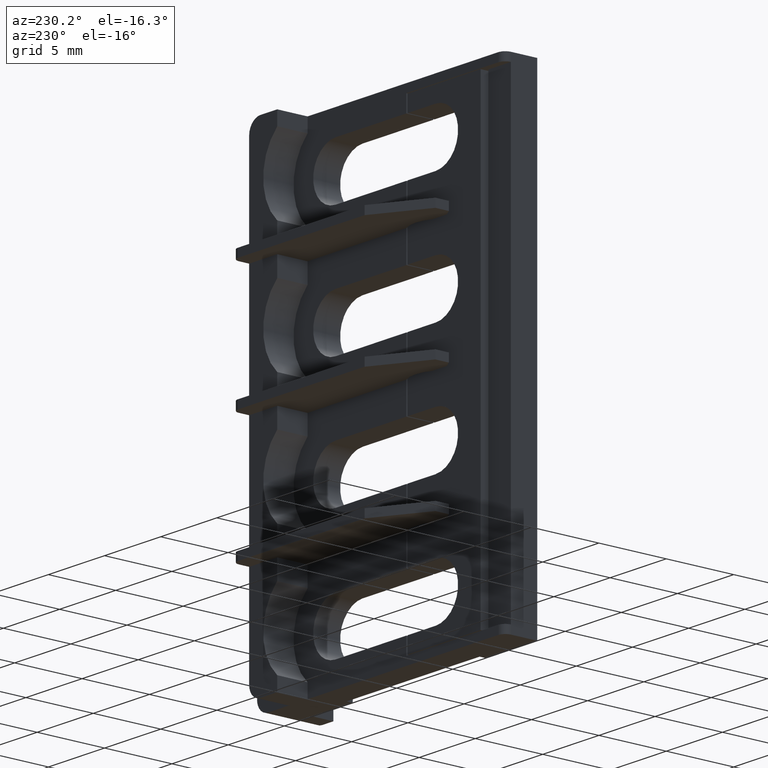
[diagram: clean part render]
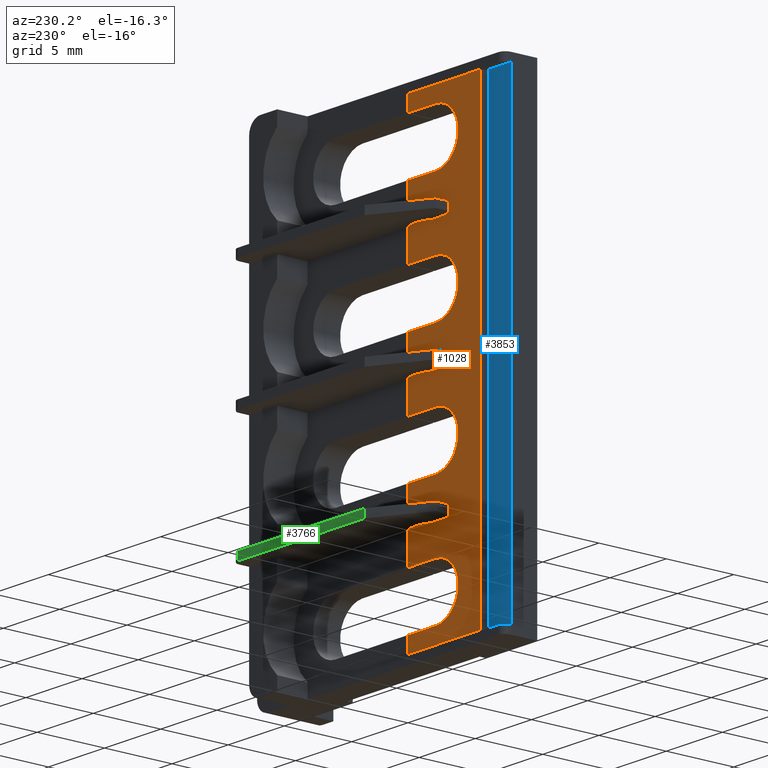
[diagram: same view with three faces highlighted in distinct colors, each labeled with its STEP entity id]
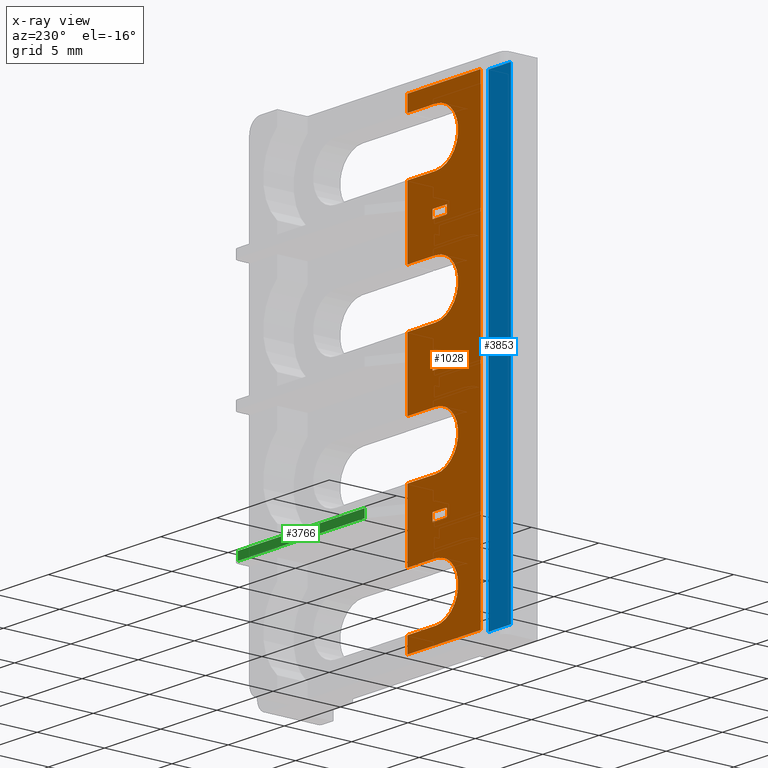
[diagram: x-ray of the same camera — body ghosted, the three highlighted faces saturated]
A machine part, auxiliary view with three faces highlighted in distinct colors.
The next image is the same camera in x-ray (body ghosted, the three faces saturated) — at least one of them is partly hidden behind the body in this view.
Their STEP definitions:

[orange] entity #1028 — the highlighted planar face has unit normal (-0, 1, -0).
#810 = LINE ( 'NONE', #827, #3349 ) ;
#819 = DIRECTION ( 'NONE',  ( -3.492165866658365900E-015, 2.733577826868160200E-020, 1.000000000000000000 ) ) ;
#827 = CARTESIAN_POINT ( 'NONE',  ( 449.2314272154431500, 146.0878730676890000, 17.50000000000000400 ) ) ;
#947 = EDGE_CURVE ( 'NONE', #2360, #2367, #2850, .T. ) ;
#963 = EDGE_CURVE ( 'NONE', #2370, #2407, #4908, .T. ) ;
#970 = EDGE_CURVE ( 'NONE', #2411, #2392, #4975, .T. ) ;
#973 = EDGE_CURVE ( 'NONE', #2367, #2394, #4994, .T. ) ;
#993 = EDGE_CURVE ( 'NONE', #2352, #2403, #5029, .T. ) ;
#998 = EDGE_CURVE ( 'NONE', #2358, #2408, #5078, .T. ) ;
#999 = EDGE_CURVE ( 'NONE', #2409, #2366, #5064, .T. ) ;
#1004 = EDGE_CURVE ( 'NONE', #2408, #2377, #2873, .T. ) ;
#1011 = EDGE_CURVE ( 'NONE', #2403, #2389, #5059, .T. ) ;
#1012 = EDGE_CURVE ( 'NONE', #2366, #2360, #5048, .T. ) ;
#1014 = EDGE_CURVE ( 'NONE', #2372, #2370, #5105, .T. ) ;
#1015 = EDGE_CURVE ( 'NONE', #2389, #2372, #2907, .T. ) ;
#1017 = EDGE_CURVE ( 'NONE', #2401, #2411, #5103, .T. ) ;
#1020 = EDGE_CURVE ( 'NONE', #2404, #2361, #5100, .T. ) ;
#1021 = EDGE_CURVE ( 'NONE', #2377, #2352, #5102, .T. ) ;
#1022 = EDGE_CURVE ( 'NONE', #2414, #2401, #2917, .T. ) ;
#1023 = EDGE_CURVE ( 'NONE', #2361, #2409, #5093, .T. ) ;
#1026 = EDGE_CURVE ( 'NONE', #2392, #2404, #5120, .T. ) ;
#1028 = ADVANCED_FACE ( 'NONE', ( #5129, #5109, #1952, #1979 ), #1951, .T. ) ;
#1037 = EDGE_CURVE ( 'NONE', #2394, #2358, #1964, .T. ) ;
#1042 = EDGE_CURVE ( 'NONE', #2407, #2414, #2030, .T. ) ;
#1094 = CARTESIAN_POINT ( 'NONE',  ( 446.2252094327939700, 146.0878730676890000, 34.54999999999999000 ) ) ;
#1102 = CARTESIAN_POINT ( 'NONE',  ( 452.7252094327940300, 146.0878730676890000, 33.39999999999999900 ) ) ;
#1103 = CARTESIAN_POINT ( 'NONE',  ( 450.2252094327940300, 146.0878730676890000, 29.39999999999999900 ) ) ;
#1107 = CARTESIAN_POINT ( 'NONE',  ( 450.2252094327940300, 146.0878730676890000, 20.40000000000000200 ) ) ;
#1113 = CARTESIAN_POINT ( 'NONE',  ( 452.7252094327940300, 146.0878730676890000, 24.40000000000000600 ) ) ;
#1116 = CARTESIAN_POINT ( 'NONE',  ( 452.7252094327940300, 146.0878730676890000, 11.40000000000000000 ) ) ;
#1126 = CARTESIAN_POINT ( 'NONE',  ( 450.2252094327940300, 146.0878730676890000, 11.40000000000000000 ) ) ;
#1137 = CARTESIAN_POINT ( 'NONE',  ( 452.7252094327940300, 146.0878730676890000, 20.40000000000000200 ) ) ;
#1142 = CARTESIAN_POINT ( 'NONE',  ( 450.2252094327940300, 146.0878730676890000, 33.39999999999999900 ) ) ;
#1155 = CARTESIAN_POINT ( 'NONE',  ( 446.2252094327940300, 146.0878730676890000, 1.250000000000042400 ) ) ;
#1163 = CARTESIAN_POINT ( 'NONE',  ( 450.2252094327940300, 146.0878730676890000, 2.400000000000024800 ) ) ;
#1171 = CARTESIAN_POINT ( 'NONE',  ( 452.7252094327940300, 146.0878730676890000, 15.40000000000000200 ) ) ;
#1175 = CARTESIAN_POINT ( 'NONE',  ( 450.2252094327940300, 146.0878730676890000, 6.400000000000000400 ) ) ;
#1180 = CARTESIAN_POINT ( 'NONE',  ( 452.7252094327940300, 146.0878730676890000, 1.250000000000056600 ) ) ;
#1183 = CARTESIAN_POINT ( 'NONE',  ( 452.7252094327940300, 146.0878730676890000, 6.400000000000003000 ) ) ;
#1184 = CARTESIAN_POINT ( 'NONE',  ( 452.7252094327940300, 146.0878730676890000, 34.54999999999999700 ) ) ;
#1185 = CARTESIAN_POINT ( 'NONE',  ( 450.4891510183760500, 146.0878730676890000, 8.599999999999996100 ) ) ;
#1189 = CARTESIAN_POINT ( 'NONE',  ( 452.7252094327940300, 146.0878730676890000, 29.39999999999999900 ) ) ;
#1196 = CARTESIAN_POINT ( 'NONE',  ( 450.2252094327940300, 146.0878730676890000, 24.39999999999999900 ) ) ;
#1203 = CARTESIAN_POINT ( 'NONE',  ( 452.7252094327940300, 146.0878730676890000, 2.400000000000027400 ) ) ;
#1204 = CARTESIAN_POINT ( 'NONE',  ( 450.2252094327940300, 146.0878730676890000, 15.40000000000000000 ) ) ;
#1229 = CARTESIAN_POINT ( 'NONE',  ( 450.4891510183761100, 146.0878730676890000, 17.59999999999999800 ) ) ;
#1235 = CARTESIAN_POINT ( 'NONE',  ( 450.4891510183761100, 146.0878730676890000, 27.19999999999999600 ) ) ;
#1266 = CARTESIAN_POINT ( 'NONE',  ( 449.2314272154431500, 146.0878730676890000, 17.59999999999995200 ) ) ;
#1268 = CARTESIAN_POINT ( 'NONE',  ( 449.2314272154431500, 146.0878730676890000, 18.19999999999995300 ) ) ;
#1280 = CARTESIAN_POINT ( 'NONE',  ( 449.2314272154431500, 146.0878730676890000, 26.59999999999995200 ) ) ;
#1286 = CARTESIAN_POINT ( 'NONE',  ( 450.4891510183760500, 146.0878730676890000, 9.199999999999995700 ) ) ;
#1287 = CARTESIAN_POINT ( 'NONE',  ( 449.2314272154431500, 146.0878730676890000, 8.599999999999949900 ) ) ;
#1301 = CARTESIAN_POINT ( 'NONE',  ( 450.4891510183761100, 146.0878730676890000, 18.19999999999999600 ) ) ;
#1317 = CARTESIAN_POINT ( 'NONE',  ( 450.4891510183761100, 146.0878730676890000, 26.59999999999999400 ) ) ;
#1327 = CARTESIAN_POINT ( 'NONE',  ( 449.2314272154431500, 146.0878730676890000, 9.200000000000059700 ) ) ;
#1333 = CARTESIAN_POINT ( 'NONE',  ( 449.2314272154431500, 146.0878730676890000, 27.19999999999995000 ) ) ;
#1338 = CARTESIAN_POINT ( 'NONE',  ( 450.4891510183760500, 146.0878730676890000, 27.97004666442669700 ) ) ;
#1347 = LINE ( 'NONE', #1338, #2936 ) ;
#1352 = CARTESIAN_POINT ( 'NONE',  ( 449.2314272154431500, 146.0878730676890000, 8.500000000000001800 ) ) ;
#1354 = DIRECTION ( 'NONE',  ( -3.492165866658365900E-015, 2.733577826868160200E-020, 1.000000000000000000 ) ) ;
#1373 = LINE ( 'NONE', #1352, #2973 ) ;
#1379 = DIRECTION ( 'NONE',  ( 3.492165866658340300E-015, -2.733577826868160200E-020, -1.000000000000000000 ) ) ;
#1399 = LINE ( 'NONE', #1416, #2937 ) ;
#1416 = CARTESIAN_POINT ( 'NONE',  ( 450.4891510183760500, 146.0878730676890000, 36.97004666442673900 ) ) ;
#1417 = DIRECTION ( 'NONE',  ( 3.492165866658340300E-015, -2.733577826868160200E-020, -1.000000000000000000 ) ) ;
#1431 = DIRECTION ( 'NONE',  ( 3.492165866658340300E-015, -2.733577826868160200E-020, -1.000000000000000000 ) ) ;
#1445 = CARTESIAN_POINT ( 'NONE',  ( 450.4891510183760500, 146.0878730676890000, 12.11429792872381700 ) ) ;
#1458 = LINE ( 'NONE', #1494, #2931 ) ;
#1461 = LINE ( 'NONE', #1445, #2942 ) ;
#1465 = CARTESIAN_POINT ( 'NONE',  ( 463.6252094327940100, 146.0878730676890000, 26.59999999999999800 ) ) ;
#1466 = CARTESIAN_POINT ( 'NONE',  ( 449.2314272154431500, 146.0878730676890000, 26.50000000000000400 ) ) ;
#1470 = DIRECTION ( 'NONE',  ( -3.492165866658365900E-015, 2.733577826868160200E-020, 1.000000000000000000 ) ) ;
#1479 = LINE ( 'NONE', #1466, #2950 ) ;
#1492 = DIRECTION ( 'NONE',  ( 1.000000000000000000, 2.625714205539855700E-033, 3.492165866658340700E-015 ) ) ;
#1494 = CARTESIAN_POINT ( 'NONE',  ( 463.6252094327940100, 146.0878730676890000, 18.19999999999999900 ) ) ;
#1497 = LINE ( 'NONE', #1465, #2997 ) ;
#1506 = DIRECTION ( 'NONE',  ( -1.000000000000000000, -2.625714205539855700E-033, -3.492165866658340700E-015 ) ) ;
#1620 = DIRECTION ( 'NONE',  ( 1.000000000000000000, 2.625714205539855700E-033, 3.492165866658340700E-015 ) ) ;
#1623 = CARTESIAN_POINT ( 'NONE',  ( 463.6252094327940100, 146.0878730676890000, 17.60000000000000100 ) ) ;
#1638 = LINE ( 'NONE', #1623, #3023 ) ;
#1645 = LINE ( 'NONE', #1647, #3056 ) ;
#1647 = CARTESIAN_POINT ( 'NONE',  ( 463.6252094327940100, 146.0878730676890000, 8.599999999999999600 ) ) ;
#1685 = DIRECTION ( 'NONE',  ( 1.000000000000000000, 2.625714205539855700E-033, 3.492165866658340700E-015 ) ) ;
#1871 = CARTESIAN_POINT ( 'NONE',  ( 463.6252094327940100, 146.0878730676890000, 27.19999999999999900 ) ) ;
#1872 = DIRECTION ( 'NONE',  ( -1.000000000000000000, -2.625714205539855700E-033, -3.492165866658340700E-015 ) ) ;
#1873 = LINE ( 'NONE', #1885, #3141 ) ;
#1879 = DIRECTION ( 'NONE',  ( -1.000000000000000000, -2.625714205539855700E-033, -3.492165866658340700E-015 ) ) ;
#1885 = CARTESIAN_POINT ( 'NONE',  ( 463.6252094327940100, 146.0878730676890000, 9.200000000000109400 ) ) ;
#1900 = LINE ( 'NONE', #1871, #3162 ) ;
#1951 = PLANE ( 'NONE',  #2928 ) ;
#1952 = FACE_BOUND ( 'NONE', #4633, .T. ) ;
#1964 = LINE ( 'NONE', #1969, #2886 ) ;
#1967 = DIRECTION ( 'NONE',  ( -0.0000000000000000000, -2.733577826868160200E-020, -1.000000000000000000 ) ) ;
#1969 = CARTESIAN_POINT ( 'NONE',  ( 452.7252094327940300, 146.0878730676890000, 4.400000000000000400 ) ) ;
#1972 = DIRECTION ( 'NONE',  ( -2.530253133731424900E-033, 1.000000000000000000, -2.733577826868160200E-020 ) ) ;
#1979 = FACE_OUTER_BOUND ( 'NONE', #4725, .T. ) ;
#1983 = CARTESIAN_POINT ( 'NONE',  ( 450.2252094327940300, 146.0878730676890000, 4.400000000000000400 ) ) ;
#1987 = DIRECTION ( 'NONE',  ( 0.0000000000000000000, 2.733577826868160200E-020, 1.000000000000000000 ) ) ;
#2013 = DIRECTION ( 'NONE',  ( -1.000000000000000000, -2.530253133731424900E-033, 6.916643862731900400E-053 ) ) ;
#2026 = CARTESIAN_POINT ( 'NONE',  ( 450.2252094327940300, 146.0878730676890000, 6.400000000000000400 ) ) ;
#2030 = LINE ( 'NONE', #2026, #2885 ) ;
#2352 = VERTEX_POINT ( 'NONE', #1137 ) ;
#2358 = VERTEX_POINT ( 'NONE', #1113 ) ;
#2360 = VERTEX_POINT ( 'NONE', #1142 ) ;
#2361 = VERTEX_POINT ( 'NONE', #1094 ) ;
#2366 = VERTEX_POINT ( 'NONE', #1102 ) ;
#2367 = VERTEX_POINT ( 'NONE', #1103 ) ;
#2370 = VERTEX_POINT ( 'NONE', #1116 ) ;
#2372 = VERTEX_POINT ( 'NONE', #1126 ) ;
#2377 = VERTEX_POINT ( 'NONE', #1107 ) ;
#2389 = VERTEX_POINT ( 'NONE', #1204 ) ;
#2392 = VERTEX_POINT ( 'NONE', #1180 ) ;
#2394 = VERTEX_POINT ( 'NONE', #1189 ) ;
#2401 = VERTEX_POINT ( 'NONE', #1163 ) ;
#2403 = VERTEX_POINT ( 'NONE', #1171 ) ;
#2404 = VERTEX_POINT ( 'NONE', #1155 ) ;
#2407 = VERTEX_POINT ( 'NONE', #1183 ) ;
#2408 = VERTEX_POINT ( 'NONE', #1196 ) ;
#2409 = VERTEX_POINT ( 'NONE', #1184 ) ;
#2411 = VERTEX_POINT ( 'NONE', #1203 ) ;
#2414 = VERTEX_POINT ( 'NONE', #1175 ) ;
#2416 = VERTEX_POINT ( 'NONE', #1185 ) ;
#2477 = VERTEX_POINT ( 'NONE', #1266 ) ;
#2478 = VERTEX_POINT ( 'NONE', #1229 ) ;
#2485 = VERTEX_POINT ( 'NONE', #1268 ) ;
#2504 = VERTEX_POINT ( 'NONE', #1235 ) ;
#2513 = VERTEX_POINT ( 'NONE', #1317 ) ;
#2515 = VERTEX_POINT ( 'NONE', #1287 ) ;
#2519 = VERTEX_POINT ( 'NONE', #1301 ) ;
#2537 = VERTEX_POINT ( 'NONE', #1286 ) ;
#2539 = VERTEX_POINT ( 'NONE', #1327 ) ;
#2543 = VERTEX_POINT ( 'NONE', #1280 ) ;
#2545 = ORIENTED_EDGE ( 'NONE', *, *, #1020, .T. ) ;
#2547 = ORIENTED_EDGE ( 'NONE', *, *, #1017, .T. ) ;
#2548 = VERTEX_POINT ( 'NONE', #1333 ) ;
#2550 = ORIENTED_EDGE ( 'NONE', *, *, #993, .T. ) ;
#2553 = ORIENTED_EDGE ( 'NONE', *, *, #973, .T. ) ;
#2560 = ORIENTED_EDGE ( 'NONE', *, *, #1015, .T. ) ;
#2561 = ORIENTED_EDGE ( 'NONE', *, *, #1014, .T. ) ;
#2563 = ORIENTED_EDGE ( 'NONE', *, *, #963, .T. ) ;
#2564 = ORIENTED_EDGE ( 'NONE', *, *, #998, .T. ) ;
#2567 = ORIENTED_EDGE ( 'NONE', *, *, #1023, .T. ) ;
#2569 = ORIENTED_EDGE ( 'NONE', *, *, #1004, .T. ) ;
#2571 = ORIENTED_EDGE ( 'NONE', *, *, #970, .T. ) ;
#2573 = ORIENTED_EDGE ( 'NONE', *, *, #1026, .T. ) ;
#2576 = ORIENTED_EDGE ( 'NONE', *, *, #947, .T. ) ;
#2583 = ORIENTED_EDGE ( 'NONE', *, *, #1037, .T. ) ;
#2584 = ORIENTED_EDGE ( 'NONE', *, *, #1011, .T. ) ;
#2588 = ORIENTED_EDGE ( 'NONE', *, *, #3530, .T. ) ;
#2591 = ORIENTED_EDGE ( 'NONE', *, *, #1042, .T. ) ;
#2592 = ORIENTED_EDGE ( 'NONE', *, *, #999, .T. ) ;
#2593 = ORIENTED_EDGE ( 'NONE', *, *, #1021, .T. ) ;
#2596 = ORIENTED_EDGE ( 'NONE', *, *, #1012, .T. ) ;
#2603 = ORIENTED_EDGE ( 'NONE', *, *, #1022, .T. ) ;
#2805 = VECTOR ( 'NONE', #4911, 1000.000000000000000 ) ;
#2806 = VECTOR ( 'NONE', #4979, 1000.000000000000000 ) ;
#2850 = CIRCLE ( 'NONE', #2851, 2.000000000000001800 ) ;
#2851 = AXIS2_PLACEMENT_3D ( 'NONE', #4904, #4905, #4861 ) ;
#2857 = VECTOR ( 'NONE', #4970, 1000.000000000000000 ) ;
#2862 = VECTOR ( 'NONE', #5054, 1000.000000000000000 ) ;
#2867 = VECTOR ( 'NONE', #5044, 1000.000000000000000 ) ;
#2873 = CIRCLE ( 'NONE', #2874, 1.999999999999998200 ) ;
#2874 = AXIS2_PLACEMENT_3D ( 'NONE', #5067, #5083, #5084 ) ;
#2878 = VECTOR ( 'NONE', #5007, 1000.000000000000000 ) ;
#2885 = VECTOR ( 'NONE', #2013, 1000.000000000000000 ) ;
#2886 = VECTOR ( 'NONE', #1967, 1000.000000000000000 ) ;
#2887 = VECTOR ( 'NONE', #5099, 1000.000000000000000 ) ;
#2900 = AXIS2_PLACEMENT_3D ( 'NONE', #5115, #5127, #5135 ) ;
#2901 = VECTOR ( 'NONE', #5056, 1000.000000000000000 ) ;
#2902 = AXIS2_PLACEMENT_3D ( 'NONE', #5095, #5119, #5124 ) ;
#2907 = CIRCLE ( 'NONE', #2902, 2.000000000000000000 ) ;
#2908 = VECTOR ( 'NONE', #5125, 1000.000000000000000 ) ;
#2909 = VECTOR ( 'NONE', #5063, 1000.000000000000000 ) ;
#2911 = VECTOR ( 'NONE', #5114, 1000.000000000000000 ) ;
#2917 = CIRCLE ( 'NONE', #2900, 2.000000000000000000 ) ;
#2918 = VECTOR ( 'NONE', #5121, 1000.000000000000000 ) ;
#2919 = VECTOR ( 'NONE', #5118, 1000.000000000000000 ) ;
#2920 = VECTOR ( 'NONE', #5112, 1000.000000000000000 ) ;
#2928 = AXIS2_PLACEMENT_3D ( 'NONE', #1983, #1972, #1987 ) ;
#2931 = VECTOR ( 'NONE', #1506, 1000.000000000000000 ) ;
#2936 = VECTOR ( 'NONE', #1379, 1000.000000000000000 ) ;
#2937 = VECTOR ( 'NONE', #1417, 1000.000000000000000 ) ;
#2942 = VECTOR ( 'NONE', #1431, 1000.000000000000000 ) ;
#2950 = VECTOR ( 'NONE', #1470, 1000.000000000000000 ) ;
#2973 = VECTOR ( 'NONE', #1354, 1000.000000000000000 ) ;
#2997 = VECTOR ( 'NONE', #1492, 1000.000000000000000 ) ;
#3023 = VECTOR ( 'NONE', #1620, 1000.000000000000000 ) ;
#3056 = VECTOR ( 'NONE', #1685, 1000.000000000000000 ) ;
#3141 = VECTOR ( 'NONE', #1879, 1000.000000000000000 ) ;
#3162 = VECTOR ( 'NONE', #1872, 1000.000000000000000 ) ;
#3349 = VECTOR ( 'NONE', #819, 1000.000000000000000 ) ;
#3432 = EDGE_CURVE ( 'NONE', #2515, #2539, #1373, .T. ) ;
#3433 = EDGE_CURVE ( 'NONE', #2519, #2478, #1347, .T. ) ;
#3449 = EDGE_CURVE ( 'NONE', #2504, #2513, #1399, .T. ) ;
#3454 = EDGE_CURVE ( 'NONE', #2537, #2416, #1461, .T. ) ;
#3465 = EDGE_CURVE ( 'NONE', #2519, #2485, #1458, .T. ) ;
#3469 = EDGE_CURVE ( 'NONE', #2543, #2548, #1479, .T. ) ;
#3478 = EDGE_CURVE ( 'NONE', #2543, #2513, #1497, .T. ) ;
#3513 = EDGE_CURVE ( 'NONE', #2477, #2478, #1638, .T. ) ;
#3530 = EDGE_CURVE ( 'NONE', #2515, #2416, #1645, .T. ) ;
#3602 = EDGE_CURVE ( 'NONE', #2504, #2548, #1900, .T. ) ;
#3606 = EDGE_CURVE ( 'NONE', #2537, #2539, #1873, .T. ) ;
#3820 = EDGE_CURVE ( 'NONE', #2477, #2485, #810, .T. ) ;
#4449 = ORIENTED_EDGE ( 'NONE', *, *, #3433, .F. ) ;
#4451 = ORIENTED_EDGE ( 'NONE', *, *, #3820, .F. ) ;
#4458 = ORIENTED_EDGE ( 'NONE', *, *, #3513, .T. ) ;
#4463 = ORIENTED_EDGE ( 'NONE', *, *, #3469, .F. ) ;
#4465 = ORIENTED_EDGE ( 'NONE', *, *, #3449, .F. ) ;
#4466 = ORIENTED_EDGE ( 'NONE', *, *, #3602, .T. ) ;
#4476 = ORIENTED_EDGE ( 'NONE', *, *, #3465, .T. ) ;
#4478 = ORIENTED_EDGE ( 'NONE', *, *, #3478, .T. ) ;
#4526 = ORIENTED_EDGE ( 'NONE', *, *, #3432, .F. ) ;
#4531 = ORIENTED_EDGE ( 'NONE', *, *, #3454, .F. ) ;
#4544 = ORIENTED_EDGE ( 'NONE', *, *, #3606, .T. ) ;
#4622 = EDGE_LOOP ( 'NONE', ( #4449, #4476, #4451, #4458 ) ) ;
#4633 = EDGE_LOOP ( 'NONE', ( #4531, #4544, #4526, #2588 ) ) ;
#4719 = EDGE_LOOP ( 'NONE', ( #4463, #4478, #4465, #4466 ) ) ;
#4725 = EDGE_LOOP ( 'NONE', ( #2571, #2573, #2545, #2567, #2592, #2596, #2576, #2553, #2583, #2564, #2569, #2593, #2550, #2584, #2560, #2561, #2563, #2591, #2603, #2547 ) ) ;
#4861 = DIRECTION ( 'NONE',  ( 0.0000000000000000000, 0.0000000000000000000, -1.000000000000000000 ) ) ;
#4904 = CARTESIAN_POINT ( 'NONE',  ( 450.2252094327940300, 146.0878730676890000, 31.39999999999999900 ) ) ;
#4905 = DIRECTION ( 'NONE',  ( 2.530253133731424900E-033, -1.000000000000000000, 2.733577826868160200E-020 ) ) ;
#4908 = LINE ( 'NONE', #4947, #2805 ) ;
#4911 = DIRECTION ( 'NONE',  ( -0.0000000000000000000, -2.733577826868160200E-020, -1.000000000000000000 ) ) ;
#4947 = CARTESIAN_POINT ( 'NONE',  ( 452.7252094327940300, 146.0878730676890000, 4.400000000000000400 ) ) ;
#4970 = DIRECTION ( 'NONE',  ( 3.492165866658390800E-015, -0.0000000000000000000, -1.000000000000000000 ) ) ;
#4975 = LINE ( 'NONE', #4985, #2857 ) ;
#4979 = DIRECTION ( 'NONE',  ( 1.000000000000000000, 2.530253133731424900E-033, -6.916643862731900400E-053 ) ) ;
#4985 = CARTESIAN_POINT ( 'NONE',  ( 452.7252094327940300, 146.0878730676890000, 1.200000000000048100 ) ) ;
#4987 = CARTESIAN_POINT ( 'NONE',  ( 450.2252094327940300, 146.0878730676890000, 29.39999999999999900 ) ) ;
#4994 = LINE ( 'NONE', #4987, #2806 ) ;
#4996 = CARTESIAN_POINT ( 'NONE',  ( 452.7252094327940300, 146.0878730676890000, 4.400000000000000400 ) ) ;
#5007 = DIRECTION ( 'NONE',  ( -0.0000000000000000000, -2.733577826868160200E-020, -1.000000000000000000 ) ) ;
#5029 = LINE ( 'NONE', #4996, #2878 ) ;
#5044 = DIRECTION ( 'NONE',  ( 3.492165866658390800E-015, -0.0000000000000000000, -1.000000000000000000 ) ) ;
#5048 = LINE ( 'NONE', #5073, #2901 ) ;
#5049 = CARTESIAN_POINT ( 'NONE',  ( 450.2252094327940300, 146.0878730676890000, 24.40000000000000200 ) ) ;
#5051 = CARTESIAN_POINT ( 'NONE',  ( 452.7252094327940300, 146.0878730676890000, 33.39999999999999900 ) ) ;
#5054 = DIRECTION ( 'NONE',  ( -1.000000000000000000, -2.530253133731424900E-033, 6.916643862731900400E-053 ) ) ;
#5056 = DIRECTION ( 'NONE',  ( -1.000000000000000000, -2.530253133731424900E-033, 6.916643862731900400E-053 ) ) ;
#5059 = LINE ( 'NONE', #5071, #2909 ) ;
#5063 = DIRECTION ( 'NONE',  ( -1.000000000000000000, -2.530253133731424900E-033, 6.916643862731900400E-053 ) ) ;
#5064 = LINE ( 'NONE', #5051, #2867 ) ;
#5067 = CARTESIAN_POINT ( 'NONE',  ( 450.2252094327940300, 146.0878730676890000, 22.39999999999999900 ) ) ;
#5071 = CARTESIAN_POINT ( 'NONE',  ( 450.2252094327940300, 146.0878730676890000, 15.40000000000000000 ) ) ;
#5073 = CARTESIAN_POINT ( 'NONE',  ( 450.2252094327940300, 146.0878730676890000, 33.39999999999999900 ) ) ;
#5078 = LINE ( 'NONE', #5049, #2862 ) ;
#5083 = DIRECTION ( 'NONE',  ( 2.530253133731424900E-033, -1.000000000000000000, 2.733577826868160200E-020 ) ) ;
#5084 = DIRECTION ( 'NONE',  ( 0.0000000000000000000, 0.0000000000000000000, -1.000000000000000000 ) ) ;
#5091 = CARTESIAN_POINT ( 'NONE',  ( 450.2252094327940300, 146.0878730676890000, 20.40000000000000200 ) ) ;
#5093 = LINE ( 'NONE', #5128, #2887 ) ;
#5094 = CARTESIAN_POINT ( 'NONE',  ( 450.2252094327940300, 146.0878730676890000, 1.250000000000042400 ) ) ;
#5095 = CARTESIAN_POINT ( 'NONE',  ( 450.2252094327940300, 146.0878730676890000, 13.40000000000000000 ) ) ;
#5099 = DIRECTION ( 'NONE',  ( 1.000000000000000000, 2.530253133731424900E-033, -6.916643862731900400E-053 ) ) ;
#5100 = LINE ( 'NONE', #5101, #2908 ) ;
#5101 = CARTESIAN_POINT ( 'NONE',  ( 446.2252094327940300, 146.0878730676890000, 4.400000000000000400 ) ) ;
#5102 = LINE ( 'NONE', #5091, #2919 ) ;
#5103 = LINE ( 'NONE', #5132, #2911 ) ;
#5105 = LINE ( 'NONE', #5123, #2920 ) ;
#5109 = FACE_BOUND ( 'NONE', #4719, .T. ) ;
#5112 = DIRECTION ( 'NONE',  ( 1.000000000000000000, 2.530253133731424900E-033, -6.916643862731900400E-053 ) ) ;
#5114 = DIRECTION ( 'NONE',  ( 1.000000000000000000, 2.530253133731424900E-033, -6.916643862731900400E-053 ) ) ;
#5115 = CARTESIAN_POINT ( 'NONE',  ( 450.2252094327940300, 146.0878730676890000, 4.400000000000000400 ) ) ;
#5118 = DIRECTION ( 'NONE',  ( 1.000000000000000000, 2.530253133731424900E-033, -6.916643862731900400E-053 ) ) ;
#5119 = DIRECTION ( 'NONE',  ( 2.530253133731424900E-033, -1.000000000000000000, 2.733577826868160200E-020 ) ) ;
#5120 = LINE ( 'NONE', #5094, #2918 ) ;
#5121 = DIRECTION ( 'NONE',  ( -1.000000000000000000, -2.530253133731424900E-033, 6.916643862731900400E-053 ) ) ;
#5123 = CARTESIAN_POINT ( 'NONE',  ( 450.2252094327940300, 146.0878730676890000, 11.40000000000000000 ) ) ;
#5124 = DIRECTION ( 'NONE',  ( 0.0000000000000000000, 0.0000000000000000000, -1.000000000000000000 ) ) ;
#5125 = DIRECTION ( 'NONE',  ( 0.0000000000000000000, 2.733577826868160200E-020, 1.000000000000000000 ) ) ;
#5127 = DIRECTION ( 'NONE',  ( 2.530253133731424900E-033, -1.000000000000000000, 2.733577826868160200E-020 ) ) ;
#5128 = CARTESIAN_POINT ( 'NONE',  ( 450.2252094327940300, 146.0878730676890000, 34.54999999999999700 ) ) ;
#5129 = FACE_BOUND ( 'NONE', #4622, .T. ) ;
#5132 = CARTESIAN_POINT ( 'NONE',  ( 450.2252094327940300, 146.0878730676890000, 2.400000000000024800 ) ) ;
#5135 = DIRECTION ( 'NONE',  ( 0.0000000000000000000, 0.0000000000000000000, -1.000000000000000000 ) ) ;

[blue] entity #3853 — the highlighted planar face has unit normal (-0, 1, -0).
#12 = CARTESIAN_POINT ( 'NONE',  ( 444.1252094327941200, 145.5878730676890000, 1.200000000000048100 ) ) ;
#21 = LINE ( 'NONE', #12, #3225 ) ;
#38 = DIRECTION ( 'NONE',  ( -1.000000000000000000, -2.530253133731424900E-033, 6.916643862731900400E-053 ) ) ;
#912 = EDGE_CURVE ( 'NONE', #2443, #2447, #4785, .T. ) ;
#1174 = CARTESIAN_POINT ( 'NONE',  ( 444.1252094327940700, 145.5878730676890000, 34.60000000000000100 ) ) ;
#1205 = CARTESIAN_POINT ( 'NONE',  ( 446.1252094327941200, 145.5878730676890000, 34.59999999999999400 ) ) ;
#1224 = CARTESIAN_POINT ( 'NONE',  ( 444.1252094327941800, 145.5878730676890000, 1.200000000000049000 ) ) ;
#1261 = CARTESIAN_POINT ( 'NONE',  ( 446.1252094327941200, 145.5878730676890000, 1.200000000000034600 ) ) ;
#1608 = DIRECTION ( 'NONE',  ( 1.000000000000000000, 2.530253133731424900E-033, -6.916643862731900400E-053 ) ) ;
#1621 = LINE ( 'NONE', #1642, #3051 ) ;
#1642 = CARTESIAN_POINT ( 'NONE',  ( 444.1252094327941200, 145.5878730676890000, 34.60000000000000100 ) ) ;
#1886 = LINE ( 'NONE', #1895, #3126 ) ;
#1895 = CARTESIAN_POINT ( 'NONE',  ( 446.1252094327941200, 145.5878730676890000, 1.200000000000048100 ) ) ;
#1921 = DIRECTION ( 'NONE',  ( -0.0000000000000000000, -2.733577826868160200E-020, -1.000000000000000000 ) ) ;
#2305 = ORIENTED_EDGE ( 'NONE', *, *, #912, .F. ) ;
#2310 = ORIENTED_EDGE ( 'NONE', *, *, #3650, .T. ) ;
#2424 = VERTEX_POINT ( 'NONE', #1205 ) ;
#2443 = VERTEX_POINT ( 'NONE', #1174 ) ;
#2447 = VERTEX_POINT ( 'NONE', #1224 ) ;
#2474 = VERTEX_POINT ( 'NONE', #1261 ) ;
#2783 = VECTOR ( 'NONE', #4794, 1000.000000000000000 ) ;
#3051 = VECTOR ( 'NONE', #1608, 1000.000000000000000 ) ;
#3126 = VECTOR ( 'NONE', #1921, 1000.000000000000000 ) ;
#3225 = VECTOR ( 'NONE', #38, 1000.000000000000000 ) ;
#3408 = AXIS2_PLACEMENT_3D ( 'NONE', #3919, #3914, #3936 ) ;
#3517 = EDGE_CURVE ( 'NONE', #2443, #2424, #1621, .T. ) ;
#3610 = EDGE_CURVE ( 'NONE', #2424, #2474, #1886, .T. ) ;
#3650 = EDGE_CURVE ( 'NONE', #2474, #2447, #21, .T. ) ;
#3853 = ADVANCED_FACE ( 'NONE', ( #3929 ), #3889, .T. ) ;
#3889 = PLANE ( 'NONE',  #3408 ) ;
#3914 = DIRECTION ( 'NONE',  ( -2.530253133731424900E-033, 1.000000000000000000, -2.733577826868160200E-020 ) ) ;
#3919 = CARTESIAN_POINT ( 'NONE',  ( 444.1252094327941200, 145.5878730676890000, 1.200000000000048100 ) ) ;
#3929 = FACE_OUTER_BOUND ( 'NONE', #4521, .T. ) ;
#3936 = DIRECTION ( 'NONE',  ( 0.0000000000000000000, 2.733577826868160200E-020, 1.000000000000000000 ) ) ;
#4085 = ORIENTED_EDGE ( 'NONE', *, *, #3517, .T. ) ;
#4521 = EDGE_LOOP ( 'NONE', ( #2305, #4085, #5141, #2310 ) ) ;
#4785 = LINE ( 'NONE', #4799, #2783 ) ;
#4794 = DIRECTION ( 'NONE',  ( 3.492165866658390800E-015, -0.0000000000000000000, -1.000000000000000000 ) ) ;
#4799 = CARTESIAN_POINT ( 'NONE',  ( 444.1252094327941200, 145.5878730676890000, 34.60000000000000100 ) ) ;
#5141 = ORIENTED_EDGE ( 'NONE', *, *, #3610, .T. ) ;

[green] entity #3766 — the highlighted planar face has unit normal (0, -1, 0).
#524 = FACE_OUTER_BOUND ( 'NONE', #4540, .T. ) ;
#537 = PLANE ( 'NONE',  #3319 ) ;
#569 = CARTESIAN_POINT ( 'NONE',  ( 451.4830932652830000, 149.5878730676890000, 8.500000000000000000 ) ) ;
#601 = DIRECTION ( 'NONE',  ( 2.530253133731424900E-033, -1.000000000000000000, 2.733577826868160200E-020 ) ) ;
#621 = DIRECTION ( 'NONE',  ( 0.0000000000000000000, -2.733577826868160200E-020, -1.000000000000000000 ) ) ;
#1240 = CARTESIAN_POINT ( 'NONE',  ( 452.3491186690670800, 149.5878730676890000, 8.599999999999960600 ) ) ;
#1285 = CARTESIAN_POINT ( 'NONE',  ( 452.3491186690670800, 149.5878730676890000, 9.200000000000082800 ) ) ;
#1303 = CARTESIAN_POINT ( 'NONE',  ( 463.6252094327940100, 149.5878730676890000, 8.599999999999999600 ) ) ;
#1323 = CARTESIAN_POINT ( 'NONE',  ( 463.6252094327940100, 149.5878730676890000, 9.200000000000109400 ) ) ;
#1386 = CARTESIAN_POINT ( 'NONE',  ( 463.6252094327940100, 149.5878730676890000, 9.200000000000109400 ) ) ;
#1391 = DIRECTION ( 'NONE',  ( -1.000000000000000000, -0.0000000000000000000, -3.492165866658340700E-015 ) ) ;
#1398 = LINE ( 'NONE', #1456, #2966 ) ;
#1410 = LINE ( 'NONE', #1386, #2985 ) ;
#1424 = CARTESIAN_POINT ( 'NONE',  ( 463.6252094327940100, 149.5878730676890000, 8.500000000000000000 ) ) ;
#1428 = DIRECTION ( 'NONE',  ( 0.0000000000000000000, -2.733577826868160200E-020, -1.000000000000000000 ) ) ;
#1440 = DIRECTION ( 'NONE',  ( -0.0000000000000000000, 2.733577826868160200E-020, 1.000000000000000000 ) ) ;
#1452 = LINE ( 'NONE', #1424, #2940 ) ;
#1456 = CARTESIAN_POINT ( 'NONE',  ( 452.3491186690670200, 149.5878730676890000, 8.500000000000000000 ) ) ;
#1644 = DIRECTION ( 'NONE',  ( 1.000000000000000000, -0.0000000000000000000, 3.492165866658340700E-015 ) ) ;
#1646 = CARTESIAN_POINT ( 'NONE',  ( 463.6252094327940100, 149.5878730676890000, 8.599999999999999600 ) ) ;
#1673 = LINE ( 'NONE', #1646, #3026 ) ;
#2088 = ORIENTED_EDGE ( 'NONE', *, *, #3451, .F. ) ;
#2449 = VERTEX_POINT ( 'NONE', #1240 ) ;
#2516 = VERTEX_POINT ( 'NONE', #1285 ) ;
#2522 = VERTEX_POINT ( 'NONE', #1303 ) ;
#2532 = VERTEX_POINT ( 'NONE', #1323 ) ;
#2694 = ORIENTED_EDGE ( 'NONE', *, *, #3437, .F. ) ;
#2703 = ORIENTED_EDGE ( 'NONE', *, *, #3462, .F. ) ;
#2719 = ORIENTED_EDGE ( 'NONE', *, *, #3527, .F. ) ;
#2940 = VECTOR ( 'NONE', #1440, 1000.000000000000000 ) ;
#2966 = VECTOR ( 'NONE', #1428, 1000.000000000000000 ) ;
#2985 = VECTOR ( 'NONE', #1391, 1000.000000000000000 ) ;
#3026 = VECTOR ( 'NONE', #1644, 1000.000000000000000 ) ;
#3319 = AXIS2_PLACEMENT_3D ( 'NONE', #569, #601, #621 ) ;
#3437 = EDGE_CURVE ( 'NONE', #2532, #2516, #1410, .T. ) ;
#3451 = EDGE_CURVE ( 'NONE', #2516, #2449, #1398, .T. ) ;
#3462 = EDGE_CURVE ( 'NONE', #2522, #2532, #1452, .T. ) ;
#3527 = EDGE_CURVE ( 'NONE', #2449, #2522, #1673, .T. ) ;
#3766 = ADVANCED_FACE ( 'NONE', ( #524 ), #537, .F. ) ;
#4540 = EDGE_LOOP ( 'NONE', ( #2088, #2694, #2703, #2719 ) ) ;